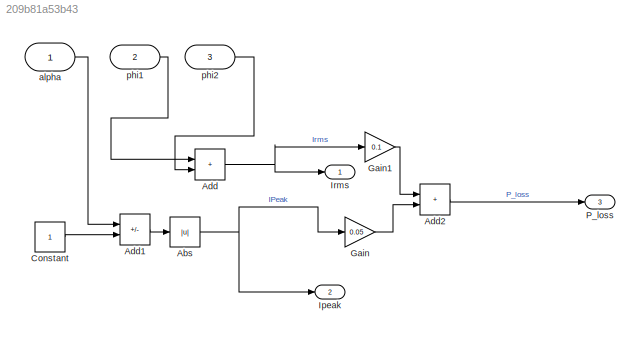
MODEL slx_209b81a53b43
KIND model
CONFIG AbsTol = auto
CONFIG EnableMultiTasking = off
CONFIG FixedStep = auto
CONFIG MaxStep = auto
CONFIG MinStep = auto
CONFIG RelTol = 1e-3
CONFIG SampleTimeConstraint = Unconstrained
CONFIG SolverName = VariableStepAuto
CONFIG StartTime = 0.0
CONFIG StopTime = 10.0
BLOCK [Abs] Abs
  SaturateOnIntegerOverflow = off
BLOCK [Sum] Add
  IconShape = rectangular
BLOCK [Sum] Add1
  IconShape = rectangular
  Inputs = +-
BLOCK [Sum] Add2
  IconShape = rectangular
BLOCK [Constant] Constant
BLOCK [Gain] Gain
  Gain = 0.05
BLOCK [Gain] Gain1
  Gain = 0.1
BLOCK [Outport] Ipeak
  Port = 2
BLOCK [Outport] Irms
BLOCK [Outport] P_loss
  Port = 3
BLOCK [Inport] alpha
BLOCK [Inport] phi1
  Port = 2
BLOCK [Inport] phi2
  Port = 3
NET Abs:1 -> Gain:1, Ipeak:1
LINE Add1:1 -> Abs:1
LINE Add2:1 -> P_loss:1
NET Add:1 -> Gain1:1, Irms:1
LINE Constant:1 -> Add1:2
LINE Gain1:1 -> Add2:1
LINE Gain:1 -> Add2:2
LINE alpha:1 -> Add1:1
LINE phi1:1 -> Add:1
LINE phi2:1 -> Add:2
note: NET lines group one-source signal fan-out (src -> all destinations, sorted); 1:1 wires keep LINE
